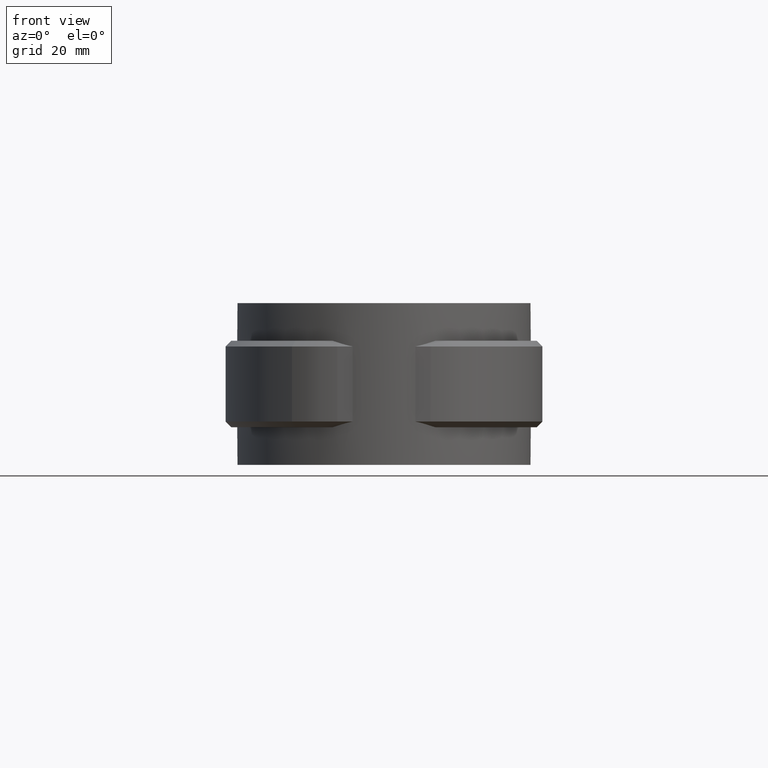
[diagram: clean part render]
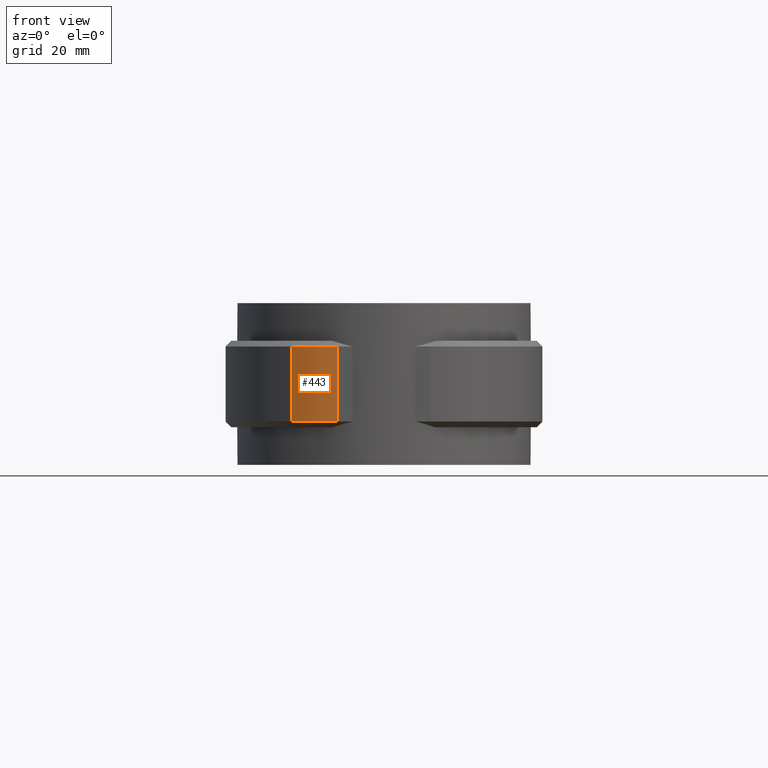
[diagram: same view with one face highlighted and labeled with its STEP entity id]
A machine part, front view. The second image highlights one B-rep face of the part: STEP entity #443.
In plain terms, the highlighted cylindrical surface (partial cylindrical patch) has radius 13.6 mm, axis along (0, 0, 1).
Its self-contained STEP definition (entity closure, byte-faithful):
#443 = ADVANCED_FACE( '', ( #882 ), #883, .T. );
#882 = FACE_OUTER_BOUND( '', #1879, .T. );
#883 = CYLINDRICAL_SURFACE( '', #1880, 13.6000000000000 );
#1879 = EDGE_LOOP( '', ( #4283, #4284, #4285, #4286 ) );
#1880 = AXIS2_PLACEMENT_3D( '', #4287, #4288, #4289 );
#4283 = ORIENTED_EDGE( '', *, *, #7628, .F. );
#4284 = ORIENTED_EDGE( '', *, *, #7611, .T. );
#4285 = ORIENTED_EDGE( '', *, *, #7629, .T. );
#4286 = ORIENTED_EDGE( '', *, *, #7487, .T. );
#4287 = CARTESIAN_POINT( '', ( -8.05583173856056, -11.2600000000000, -20.0000000000000 ) );
#4288 = DIRECTION( '', ( 0.000000000000000, 0.000000000000000, 1.00000000000000 ) );
#4289 = DIRECTION( '', ( 0.213196982952784, 0.977009235606210, 0.000000000000000 ) );
#7487 = EDGE_CURVE( '', #8572, #8570, #8573, .T. );
#7611 = EDGE_CURVE( '', #8800, #8797, #8801, .T. );
#7628 = EDGE_CURVE( '', #8800, #8570, #8826, .T. );
#7629 = EDGE_CURVE( '', #8797, #8572, #8827, .T. );
#8570 = VERTEX_POINT( '', #11068 );
#8572 = VERTEX_POINT( '', #11071 );
#8573 = CIRCLE( '', #11072, 13.6000000000000 );
#8797 = VERTEX_POINT( '', #12250 );
#8800 = VERTEX_POINT( '', #12254 );
#8801 = CIRCLE( '', #12255, 13.6000000000000 );
#8826 = LINE( '', #12311, #12312 );
#8827 = LINE( '', #12313, #12314 );
#11068 = CARTESIAN_POINT( '', ( -15.9691081303572, -22.3207439508848, -6.00000000000002 ) );
#11071 = CARTESIAN_POINT( '', ( -8.05583173856056, -24.8600000000000, -6.00000000000000 ) );
#11072 = AXIS2_PLACEMENT_3D( '', #14727, #14728, #14729 );
#12250 = CARTESIAN_POINT( '', ( -8.05583173856056, -24.8600000000000, -19.0000000000000 ) );
#12254 = CARTESIAN_POINT( '', ( -15.9691081303572, -22.3207439508848, -19.0000000000000 ) );
#12255 = AXIS2_PLACEMENT_3D( '', #14841, #14842, #14843 );
#12311 = CARTESIAN_POINT( '', ( -15.9691081303572, -22.3207439508848, -20.0000000000000 ) );
#12312 = VECTOR( '', #14865, 1000.00000000000 );
#12313 = CARTESIAN_POINT( '', ( -8.05583173856056, -24.8600000000000, -20.0000000000000 ) );
#12314 = VECTOR( '', #14866, 1000.00000000000 );
#14727 = CARTESIAN_POINT( '', ( -8.05583173856056, -11.2600000000000, -6.00000000000000 ) );
#14728 = DIRECTION( '', ( 0.000000000000000, 0.000000000000000, -1.00000000000000 ) );
#14729 = DIRECTION( '', ( -1.00000000000000, 0.000000000000000, 0.000000000000000 ) );
#14841 = CARTESIAN_POINT( '', ( -8.05583173856056, -11.2600000000000, -19.0000000000000 ) );
#14842 = DIRECTION( '', ( 0.000000000000000, 0.000000000000000, 1.00000000000000 ) );
#14843 = DIRECTION( '', ( 1.00000000000000, 0.000000000000000, 0.000000000000000 ) );
#14865 = DIRECTION( '', ( 0.000000000000000, 0.000000000000000, 1.00000000000000 ) );
#14866 = DIRECTION( '', ( 0.000000000000000, 0.000000000000000, 1.00000000000000 ) );